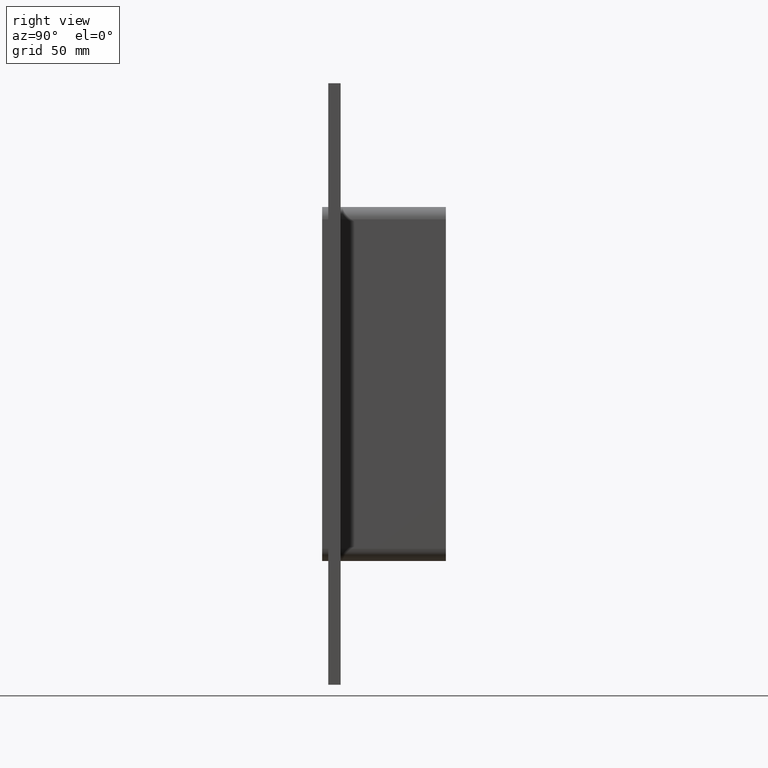
[diagram: clean part render]
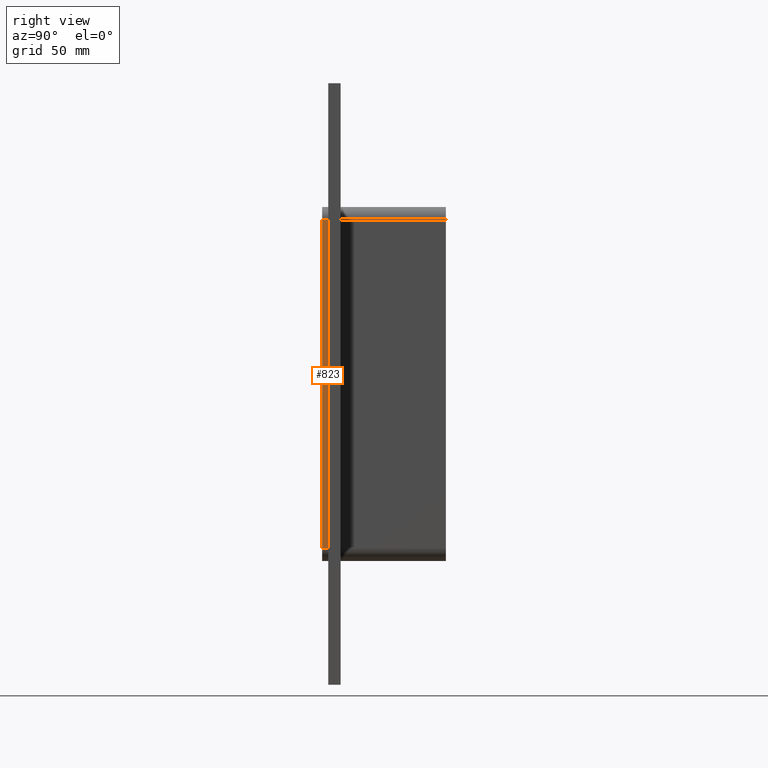
[diagram: same view with one face highlighted and labeled with its STEP entity id]
A machine part, right view. The second image highlights one B-rep face of the part: STEP entity #823.
In plain terms, the highlighted planar face has unit normal (1, 0, 0).
Its self-contained STEP definition (entity closure, byte-faithful):
#593=CARTESIAN_POINT('',(36.250000000000007,0.0,79.750000000000014));
#594=VERTEX_POINT('',#593);
#602=CARTESIAN_POINT('',(36.250000000000007,0.0,-79.750000000000028));
#603=VERTEX_POINT('',#602);
#604=CARTESIAN_POINT('',(36.250000000000007,0.0,-79.750000000000028));
#605=DIRECTION('',(0.0,0.0,1.0));
#606=VECTOR('',#605,159.50000000000006);
#607=LINE('',#604,#606);
#608=EDGE_CURVE('',#603,#594,#607,.T.);
#750=CARTESIAN_POINT('',(36.250000000000007,-3.0,79.750000000000014));
#751=VERTEX_POINT('',#750);
#759=CARTESIAN_POINT('',(36.250000000000007,-3.0,79.750000000000014));
#760=DIRECTION('',(0.0,1.0,0.0));
#761=VECTOR('',#760,3.0);
#762=LINE('',#759,#761);
#763=EDGE_CURVE('',#751,#594,#762,.T.);
#800=CARTESIAN_POINT('',(36.250000000000007,0.0,85.750000000000014));
#801=DIRECTION('',(1.0,0.0,0.0));
#802=DIRECTION('',(0.0,0.0,-1.0));
#803=AXIS2_PLACEMENT_3D('',#800,#801,#802);
#804=PLANE('',#803);
#805=ORIENTED_EDGE('',*,*,#608,.T.);
#806=ORIENTED_EDGE('',*,*,#763,.F.);
#807=CARTESIAN_POINT('',(36.250000000000007,-3.0,-79.750000000000028));
#808=VERTEX_POINT('',#807);
#809=CARTESIAN_POINT('',(36.250000000000007,-3.0,-79.750000000000043));
#810=DIRECTION('',(0.0,0.0,1.0));
#811=VECTOR('',#810,159.50000000000006);
#812=LINE('',#809,#811);
#813=EDGE_CURVE('',#808,#751,#812,.T.);
#814=ORIENTED_EDGE('',*,*,#813,.F.);
#815=CARTESIAN_POINT('',(36.250000000000007,0.0,-79.750000000000028));
#816=DIRECTION('',(0.0,-1.0,0.0));
#817=VECTOR('',#816,3.0);
#818=LINE('',#815,#817);
#819=EDGE_CURVE('',#603,#808,#818,.T.);
#820=ORIENTED_EDGE('',*,*,#819,.F.);
#821=EDGE_LOOP('',(#805,#806,#814,#820));
#822=FACE_OUTER_BOUND('',#821,.T.);
#823=ADVANCED_FACE('',(#822),#804,.T.);